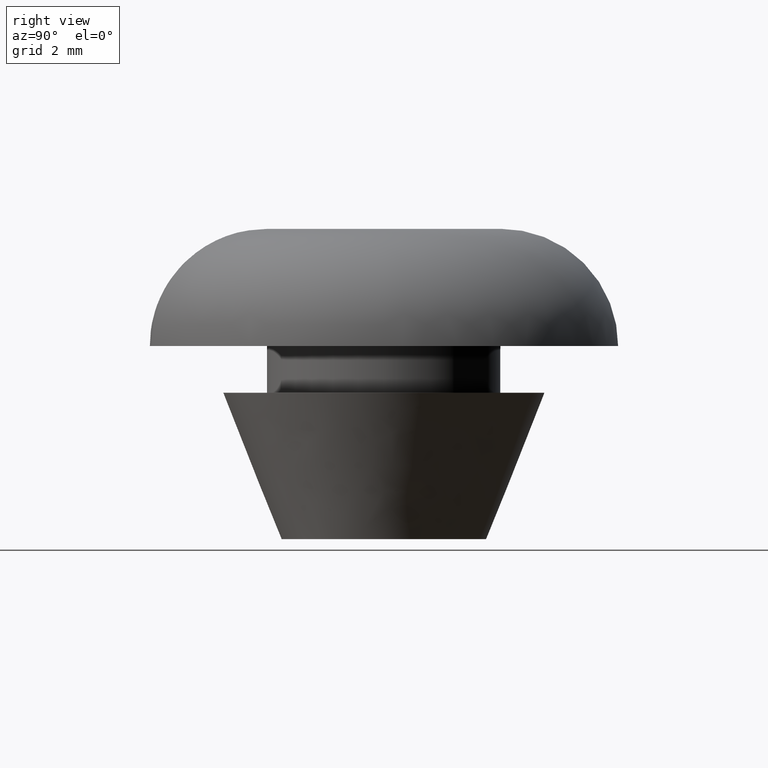
[diagram: clean part render]
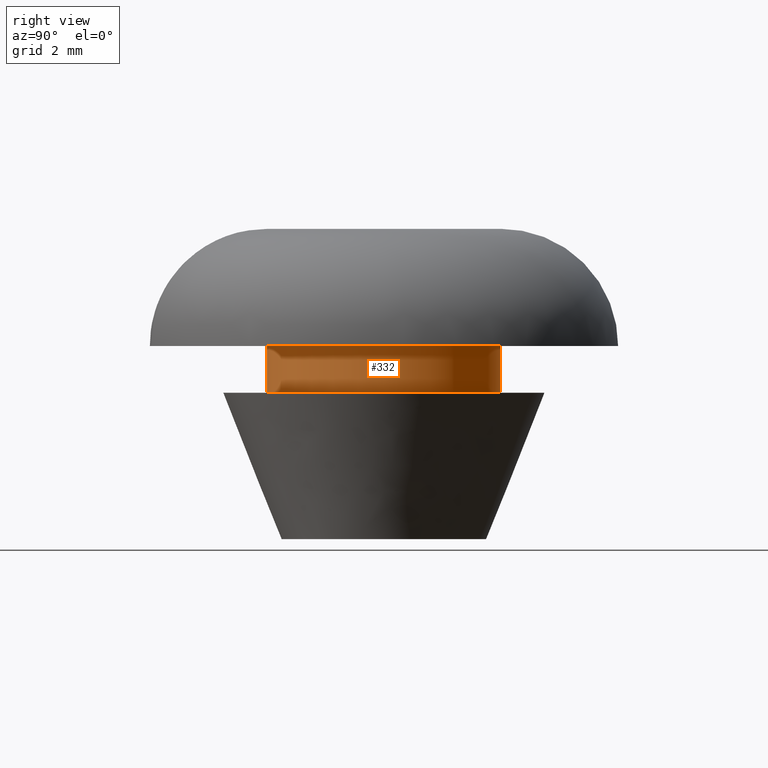
[diagram: same view with one face highlighted and labeled with its STEP entity id]
A machine part, right view. The second image highlights one B-rep face of the part: STEP entity #332.
In plain terms, the highlighted face is a freeform B-spline surface patch.
Its self-contained STEP definition (entity closure, byte-faithful):
#230=CARTESIAN_POINT('',(-0.472136938627034,3.972038105454666,6.640000000000002));
#231=CARTESIAN_POINT('',(-0.358458914551911,3.985550461794422,6.640000000000001));
#232=CARTESIAN_POINT('',(-0.244194158139428,3.992539193687467,6.640000000000001));
#233=CARTESIAN_POINT('',(3.748345035548039,4.236733351826894,6.640000000000001));
#234=CARTESIAN_POINT('',(3.992539193687467,0.244194158139428,6.640000000000001));
#235=CARTESIAN_POINT('',(4.236733351826894,-3.748345035548039,6.640000000000001));
#236=CARTESIAN_POINT('',(0.244194158139428,-3.992539193687467,6.640000000000001));
#237=CARTESIAN_POINT('',(-0.472136938627034,3.972038105454666,4.959000000000000));
#238=CARTESIAN_POINT('',(-0.358458914551911,3.985550461794422,4.958999999999999));
#239=CARTESIAN_POINT('',(-0.244194158139428,3.992539193687467,4.958999999999999));
#240=CARTESIAN_POINT('',(3.748345035548039,4.236733351826894,4.959000000000000));
#241=CARTESIAN_POINT('',(3.992539193687467,0.244194158139428,4.958999999999999));
#242=CARTESIAN_POINT('',(4.236733351826894,-3.748345035548039,4.959000000000000));
#243=CARTESIAN_POINT('',(0.244194158139428,-3.992539193687467,4.958999999999999));
#251=(BOUNDED_SURFACE()B_SPLINE_SURFACE(2,1,((#230,#237),(#231,#238),(#232,#239),(#233,#240),(#234,#241),(#235,#242),(#236,#243)),.UNSPECIFIED.,.F.,.F.,.U.)B_SPLINE_SURFACE_WITH_KNOTS((3,2,2,3),(2,2),(0.0,0.265096679918781,6.892513677888299,13.519930675857820),(0.0,1.0),.UNSPECIFIED.)GEOMETRIC_REPRESENTATION_ITEM()RATIONAL_B_SPLINE_SURFACE(((0.977505800795127,0.977505800795127),(0.988284271247462,0.988284271247462),(1.0,1.0),(0.707106781186548,0.707106781186548),(1.0,1.0),(0.707106781186548,0.707106781186548),(1.0,1.0)))REPRESENTATION_ITEM('')SURFACE());
#252=CARTESIAN_POINT('',(-0.472135276174555,3.972038303061637,6.599999999999984));
#253=VERTEX_POINT('',#252);
#254=CARTESIAN_POINT('',(4.0,0.0,6.600000000000000));
#255=VERTEX_POINT('',#254);
#256=CARTESIAN_POINT('',(-0.472135276174555,3.972038303061638,6.599999999999984));
#257=CARTESIAN_POINT('',(-0.236895638593835,4.0,6.600000000000000));
#258=CARTESIAN_POINT('',(0.0,4.0,6.600000000000000));
#259=CARTESIAN_POINT('',(4.000000000000000,4.000000000000000,6.599999999999999));
#260=CARTESIAN_POINT('',(4.0,0.0,6.600000000000000));
#268=(BOUNDED_CURVE()B_SPLINE_CURVE(2,(#256,#257,#258,#259,#260),.UNSPECIFIED.,.F.,.U.)B_SPLINE_CURVE_WITH_KNOTS((3,2,3),(0.229562544250081,0.250000000000000,0.500000000000000),.UNSPECIFIED.)CURVE()GEOMETRIC_REPRESENTATION_ITEM()RATIONAL_B_SPLINE_CURVE((0.956026892830324,0.976056031204195,1.0,0.707106781186548,1.0))REPRESENTATION_ITEM(''));
#269=EDGE_CURVE('',#253,#255,#268,.T.);
#270=ORIENTED_EDGE('',*,*,#269,.T.);
#271=CARTESIAN_POINT('',(0.244191507870781,-3.992539355783076,6.600000000000032));
#272=VERTEX_POINT('',#271);
#273=CARTESIAN_POINT('',(4.0,0.0,6.600000000000000));
#274=CARTESIAN_POINT('',(4.000000000000000,-3.762826770073696,6.599999999999998));
#275=CARTESIAN_POINT('',(0.244191507870781,-3.992539355783075,6.600000000000032));
#283=(BOUNDED_CURVE()B_SPLINE_CURVE(2,(#273,#274,#275),.UNSPECIFIED.,.F.,.U.)B_SPLINE_CURVE_WITH_KNOTS((3,3),(0.500000000000000,0.739333076779450),.UNSPECIFIED.)CURVE()GEOMETRIC_REPRESENTATION_ITEM()RATIONAL_B_SPLINE_CURVE((1.0,0.719603859094159,0.976072287148952))REPRESENTATION_ITEM(''));
#284=EDGE_CURVE('',#255,#272,#283,.T.);
#285=ORIENTED_EDGE('',*,*,#284,.T.);
#286=CARTESIAN_POINT('',(0.244191539836600,-3.992539353828005,5.0));
#287=VERTEX_POINT('',#286);
#288=CARTESIAN_POINT('',(0.244191507870781,-3.992539355783076,6.600000000000032));
#289=CARTESIAN_POINT('',(0.244191539836600,-3.992539353828005,5.0));
#290=QUASI_UNIFORM_CURVE('',1,(#288,#289),.UNSPECIFIED.,.F.,.U.);
#291=EDGE_CURVE('',#272,#287,#290,.T.);
#292=ORIENTED_EDGE('',*,*,#291,.T.);
#293=CARTESIAN_POINT('',(4.0,0.0,5.0));
#294=VERTEX_POINT('',#293);
#295=CARTESIAN_POINT('',(4.0,0.0,5.0));
#296=CARTESIAN_POINT('',(4.0,-3.762826739890751,5.000000000000001));
#297=CARTESIAN_POINT('',(0.244191539836600,-3.992539353828005,5.0));
#305=(BOUNDED_CURVE()B_SPLINE_CURVE(2,(#295,#296,#297),.UNSPECIFIED.,.F.,.U.)B_SPLINE_CURVE_WITH_KNOTS((3,3),(0.500000000000000,0.739333075397974),.UNSPECIFIED.)CURVE()GEOMETRIC_REPRESENTATION_ITEM()RATIONAL_B_SPLINE_CURVE((1.0,0.719603860712659,0.976072284188181))REPRESENTATION_ITEM(''));
#306=EDGE_CURVE('',#294,#287,#305,.T.);
#307=ORIENTED_EDGE('',*,*,#306,.F.);
#308=CARTESIAN_POINT('',(-0.472135296181069,3.972038300683576,5.0));
#309=VERTEX_POINT('',#308);
#310=CARTESIAN_POINT('',(-0.472135296181069,3.972038300683576,5.0));
#311=CARTESIAN_POINT('',(-0.236895648702844,4.000000000000001,5.0));
#312=CARTESIAN_POINT('',(0.0,4.0,5.0));
#313=CARTESIAN_POINT('',(4.000000000000000,4.000000000000000,5.000000000000001));
#314=CARTESIAN_POINT('',(4.0,0.0,5.0));
#322=(BOUNDED_CURVE()B_SPLINE_CURVE(2,(#310,#311,#312,#313,#314),.UNSPECIFIED.,.F.,.U.)B_SPLINE_CURVE_WITH_KNOTS((3,2,3),(0.229562543398839,0.250000000000000,0.500000000000000),.UNSPECIFIED.)CURVE()GEOMETRIC_REPRESENTATION_ITEM()RATIONAL_B_SPLINE_CURVE((0.956026891161853,0.976056030206903,1.0,0.707106781186548,1.0))REPRESENTATION_ITEM(''));
#323=EDGE_CURVE('',#309,#294,#322,.T.);
#324=ORIENTED_EDGE('',*,*,#323,.F.);
#325=CARTESIAN_POINT('',(-0.472135276174555,3.972038303061637,6.599999999999984));
#326=CARTESIAN_POINT('',(-0.472135296181069,3.972038300683576,5.0));
#327=QUASI_UNIFORM_CURVE('',1,(#325,#326),.UNSPECIFIED.,.F.,.U.);
#328=EDGE_CURVE('',#253,#309,#327,.T.);
#329=ORIENTED_EDGE('',*,*,#328,.F.);
#330=EDGE_LOOP('',(#270,#285,#292,#307,#324,#329));
#331=FACE_OUTER_BOUND('',#330,.T.);
#332=ADVANCED_FACE('',(#331),#251,.T.);